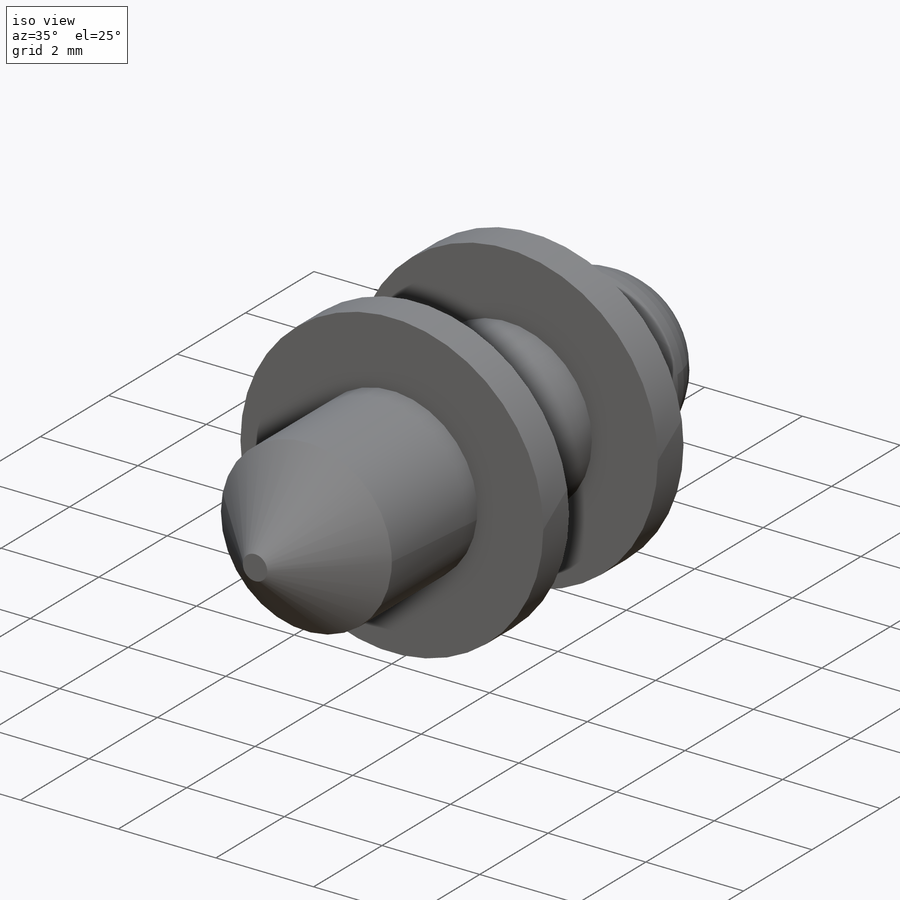
[diagram: iso view]
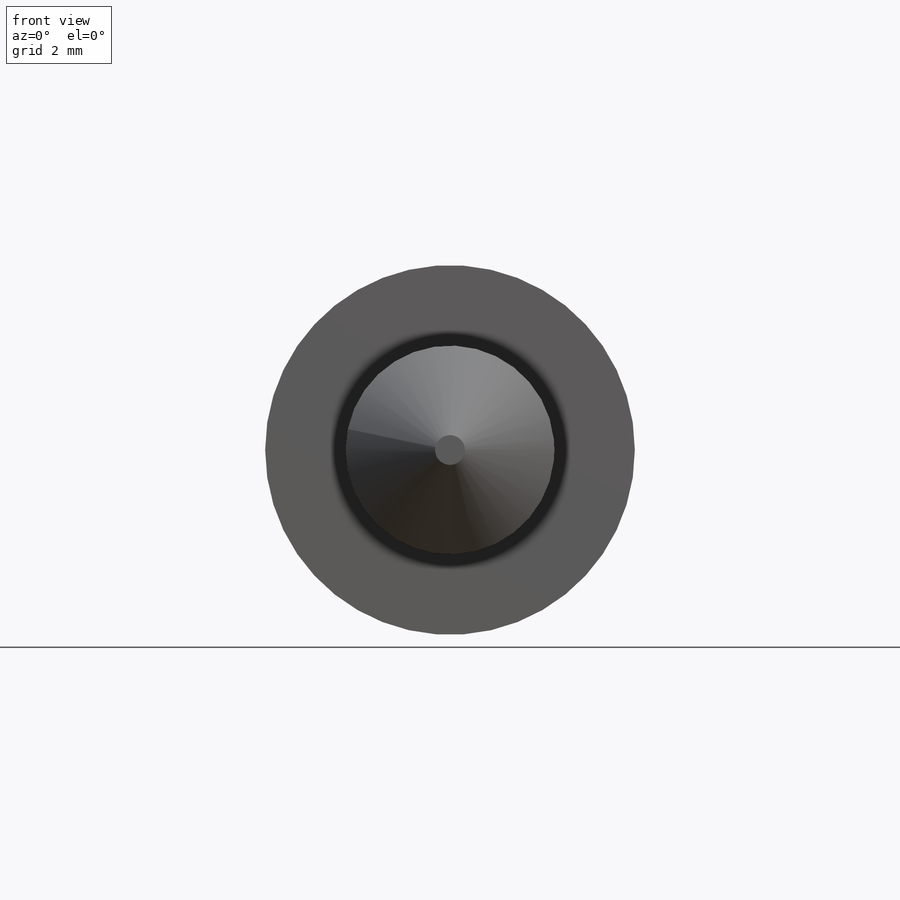
[diagram: front view]
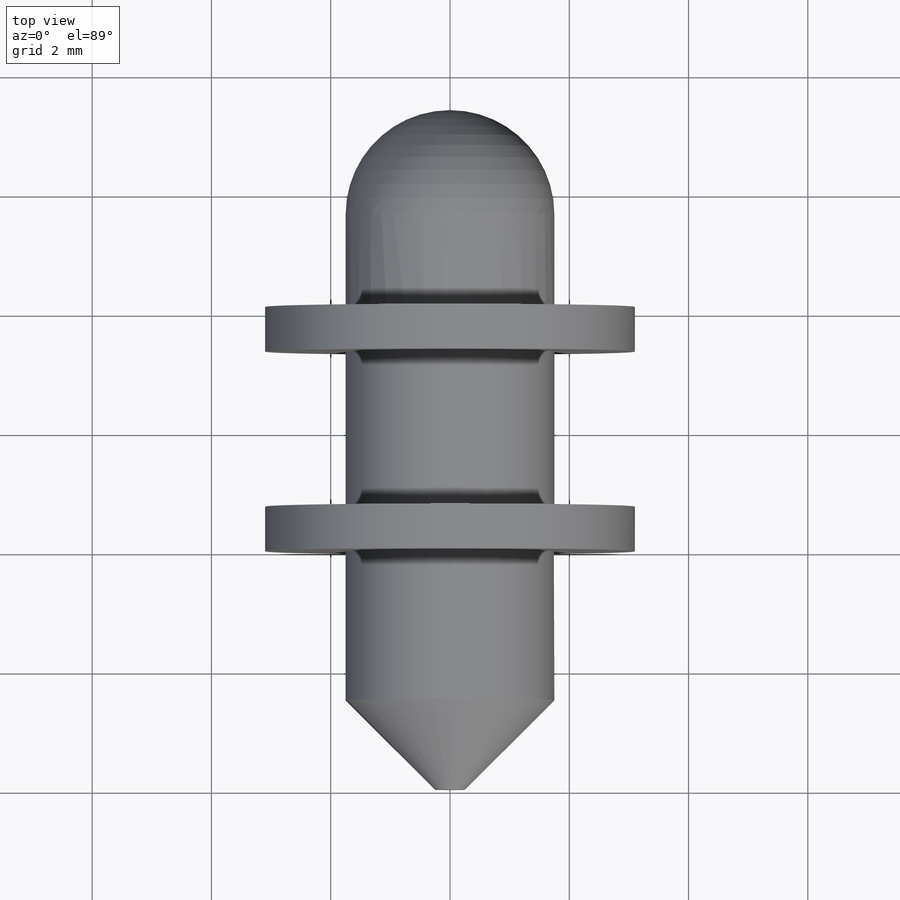
[diagram: top view]
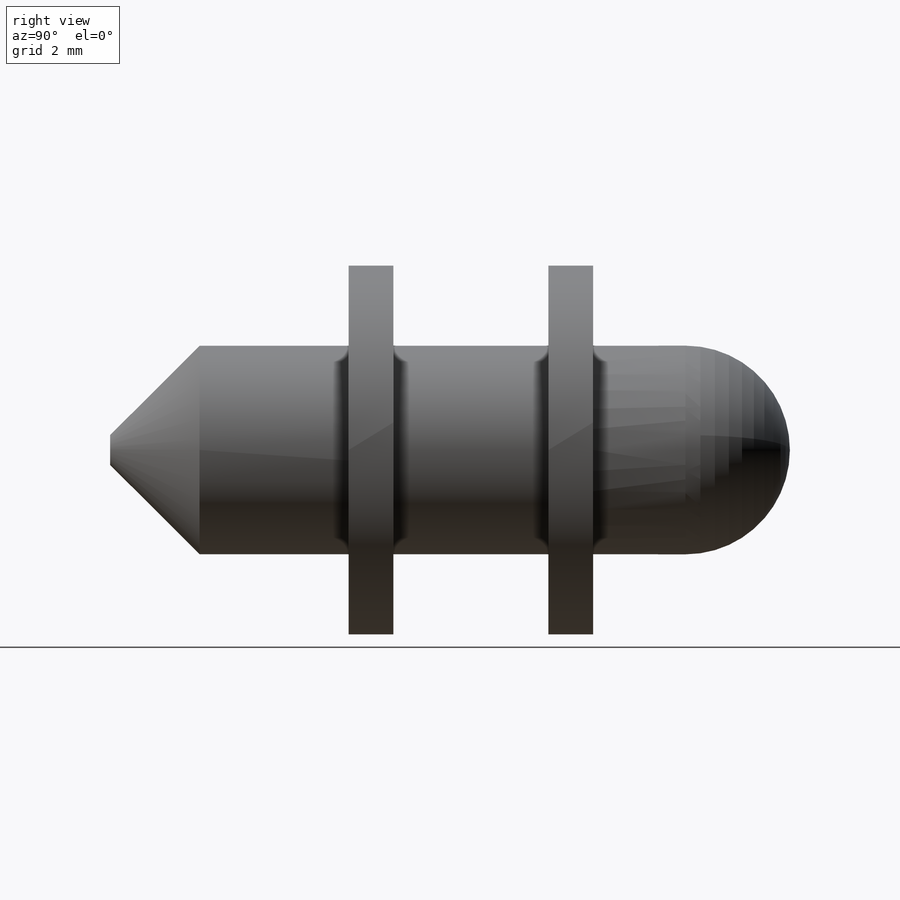
[diagram: right view]
SOLIDWORKS PART (.sldprt)
format: sldprt  version: not decoded by parser v0  size: 179,712 bytes
history: native  units: mm
features: sketch x5, extrude x5, plane x3, material x1, chamfer x1, fillet x1 (+13 scaffold rows collapsed)
feature tree (29):
  scaffold x13  (default folders/planes/origin — collapsed)
  material  "Matériau <non spécifié>"
  plane  "Plan de face"
  plane  "Plan de dessus"
  plane  "Plan de droite"
  sketch  "Esquisse1"  dims[D1=3.1mm]
  extrude  "Boss.-Extru.1"  Depth=4mm
  sketch  "Esquisse3"  dims[D1=~2.271014mm]
  extrude  "Boss.-Extru.2"  Depth=0.75mm
  sketch  "Esquisse4"  dims[D1=~1.94991mm]
  extrude  "Boss.-Extru.3"  Depth=2.6mm
  sketch  "Esquisse5"
  extrude  "Boss.-Extru.4"  Depth=0.75mm
  sketch  "Esquisse6"  dims[D1=~2.192398mm]
  extrude  "Boss.-Extru.5"  Depth=3.3mm
  chamfer  "Chanfrein1"  Distance=1.5mm Angle=45deg
  fillet  "Congé1"  Radius=1.75mm
decode coverage: 11 of 12 modeling features carry decoded parameters
note: ~ marks probable driven/reference dimensions
note: suppression state not decoded; provenance and decode notes live in map.json
